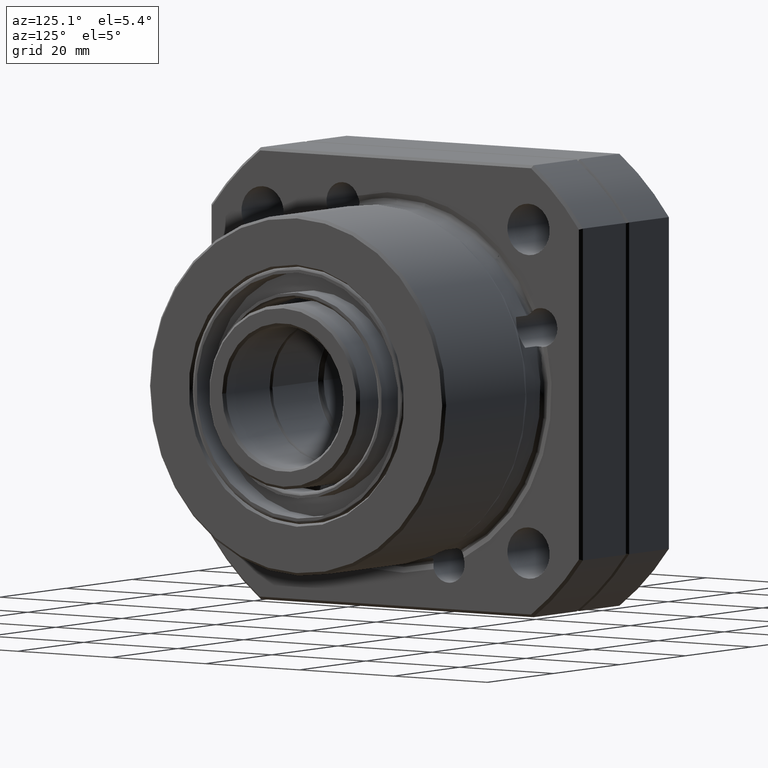
[diagram: clean part render]
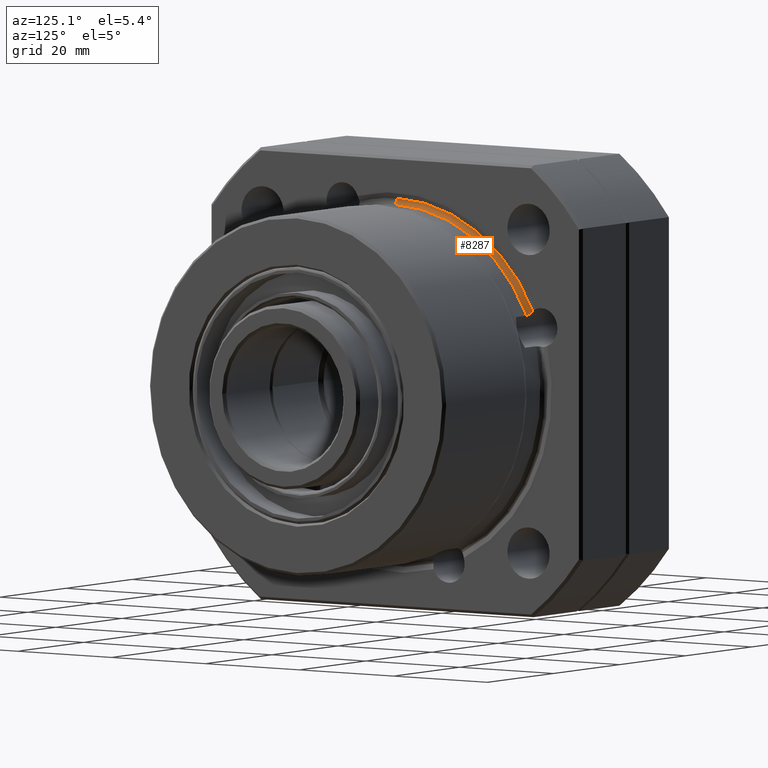
[diagram: same view with one face highlighted and labeled with its STEP entity id]
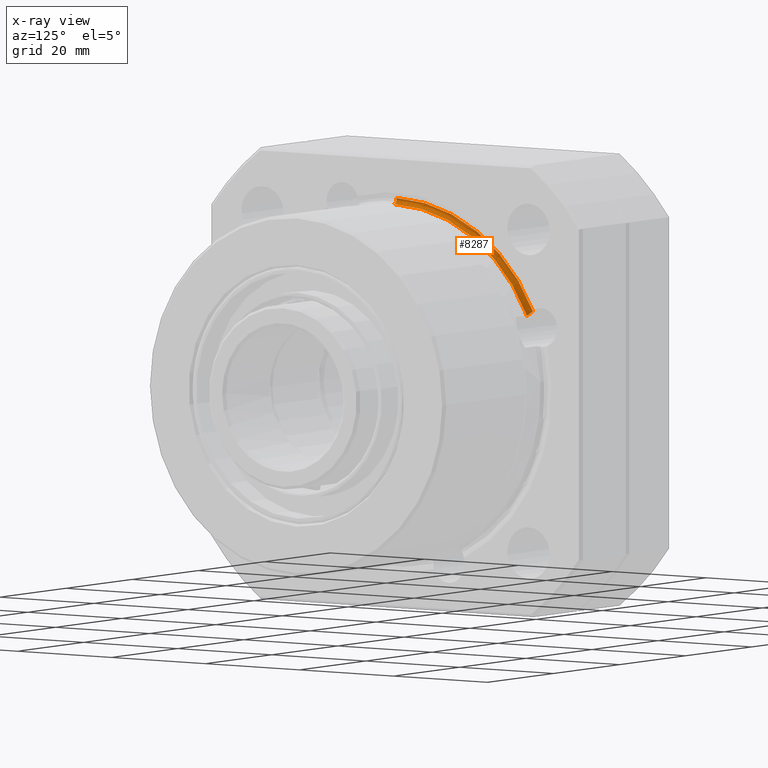
[diagram: x-ray of the same camera — body ghosted, the highlighted face saturated]
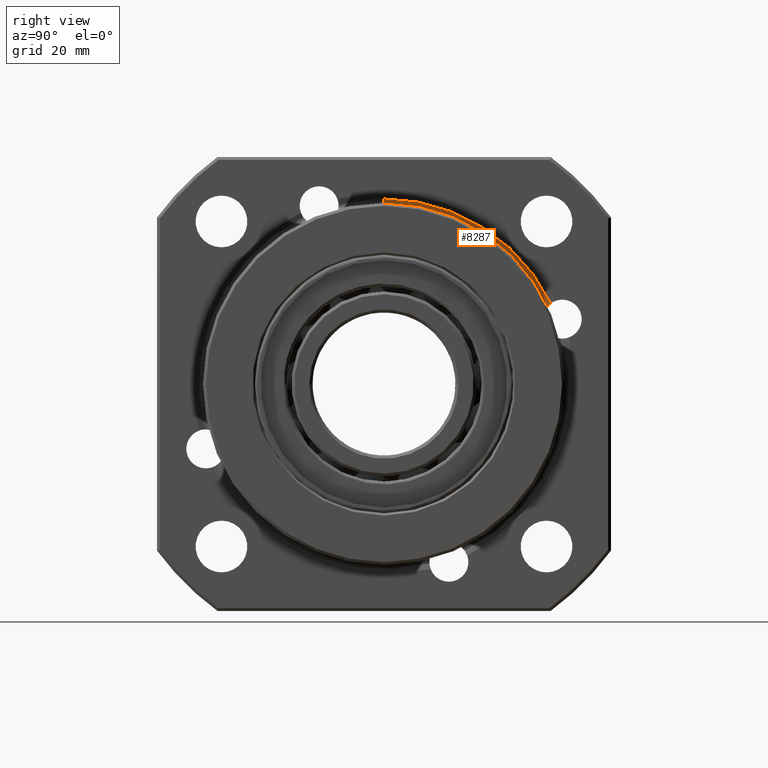
[diagram: same view with one face highlighted and labeled with its STEP entity id]
A machine part, auxiliary view. The second image highlights one B-rep face of the part: STEP entity #8287.
The next image is the same camera in x-ray: the body ghosted, the highlighted face saturated — about 0% of this face is hidden behind the body in this view.
A second angle (right view) of the same face is appended — the face is thin or edge-on in the first view.
In plain terms, the highlighted face is a freeform B-spline surface patch.
Its self-contained STEP definition (entity closure, byte-faithful):
#586 = VERTEX_POINT ( 'NONE', #2483 ) ;
#724 = CARTESIAN_POINT ( 'NONE',  ( 13.57624226026864500, 28.74636417207494800, 13.26026013525470400 ) ) ;
#725 = CIRCLE ( 'NONE', #6519, 0.8000000000000020400 ) ;
#924 = CARTESIAN_POINT ( 'NONE',  ( 14.49999999999999800, -3.081487911019577400E-030, 32.00000000000000000 ) ) ;
#1685 = CARTESIAN_POINT ( 'NONE',  ( 13.72857557779164100, 12.93587742069707900, 32.21190649074651400 ) ) ;
#1802 = AXIS2_PLACEMENT_3D ( 'NONE', #1858, #1847, #1842 ) ;
#1842 = DIRECTION ( 'NONE',  ( 0.0000000000000000000, -8.881784197001252300E-016, 1.000000000000000000 ) ) ;
#1847 = DIRECTION ( 'NONE',  ( 1.000000000000000000, -0.0000000000000000000, -0.0000000000000000000 ) ) ;
#1858 = CARTESIAN_POINT ( 'NONE',  ( 14.49999999999999800, 0.0000000000000000000, 0.0000000000000000000 ) ) ;
#1891 = DIRECTION ( 'NONE',  ( 0.0000000000000000000, 0.0000000000000000000, 1.000000000000000000 ) ) ;
#2483 = CARTESIAN_POINT ( 'NONE',  ( 14.49999999999999800, 0.0000000000000000000, 31.19999999999999900 ) ) ;
#2662 = CARTESIAN_POINT ( 'NONE',  ( 14.49999999999999800, 23.08285311349888500, 24.44607310887402800 ) ) ;
#2705 = CARTESIAN_POINT ( 'NONE',  ( 13.72857557779164100, 29.24992548720067400, 13.49254530330752600 ) ) ;
#3089 = CIRCLE ( 'NONE', #1802, 31.19999999999999900 ) ;
#3325 = CARTESIAN_POINT ( 'NONE',  ( 13.72857557779164100, 28.99737464941154400, 14.02708748137910900 ) ) ;
#3711 = CARTESIAN_POINT ( 'NONE',  ( 13.92490362806217700, -3.081487911019577700E-030, 31.19999999999999900 ) ) ;
#3729 = ORIENTED_EDGE ( 'NONE', *, *, #6599, .F. ) ;
#3756 = ORIENTED_EDGE ( 'NONE', *, *, #4771, .F. ) ;
#3768 = ORIENTED_EDGE ( 'NONE', *, *, #10486, .T. ) ;
#3785 = ORIENTED_EDGE ( 'NONE', *, *, #10081, .F. ) ;
#3834 = CARTESIAN_POINT ( 'NONE',  ( 14.02772133904862400, 28.33825553087499200, 13.39059054176156000 ) ) ;
#4277 = AXIS2_PLACEMENT_3D ( 'NONE', #10280, #4500, #11224 ) ;
#4290 = CIRCLE ( 'NONE', #4277, 32.21190649074652200 ) ;
#4500 = DIRECTION ( 'NONE',  ( -1.000000000000000000, 0.0000000000000000000, 0.0000000000000000000 ) ) ;
#4514 =( BOUNDED_SURFACE ( )  B_SPLINE_SURFACE ( 3, 3, ( 
 ( #9467, #5675, #2662, #9547 ),
 ( #3711, #10489, #4718, #11460 ),
 ( #5723, #12433, #6744, #724 ),
 ( #7705, #1685, #8665, #2705 ) ),
 .UNSPECIFIED., .F., .F., .T. ) 
 B_SPLINE_SURFACE_WITH_KNOTS ( ( 4, 4 ),
 ( 4, 4 ),
 ( 0.0000000000000000000, 1.000000000000000000 ),
 ( 0.0000000000000000000, 1.000000000000000000 ),
 .UNSPECIFIED. ) 
 GEOMETRIC_REPRESENTATION_ITEM ( )  RATIONAL_B_SPLINE_SURFACE ( (
 ( 1.000000000000000000, 0.8948527527048938400, 0.8948527527048938400, 1.000000000000000000),
 ( 0.7375106559603796800, 0.6599634406353376300, 0.6599634406353376300, 0.7375106559603796800),
 ( 0.7375106559603796800, 0.6599634406353376300, 0.6599634406353376300, 0.7375106559603796800),
 ( 1.000000000000000000, 0.8948527527048938400, 0.8948527527048938400, 1.000000000000000000) ) ) 
 REPRESENTATION_ITEM ( '' )  SURFACE ( )  );
#4718 = CARTESIAN_POINT ( 'NONE',  ( 13.92490362806217900, 23.08285311349888900, 24.44607310887403900 ) ) ;
#4771 = EDGE_CURVE ( 'NONE', #11587, #586, #3089, .T. ) ;
#4841 = CARTESIAN_POINT ( 'NONE',  ( 13.78802027655182800, 28.53257928946075200, 13.61778703031845000 ) ) ;
#5675 = CARTESIAN_POINT ( 'NONE',  ( 14.49999999999999800, 12.52950910067028900, 31.19999999999999200 ) ) ;
#5708 = FACE_OUTER_BOUND ( 'NONE', #7979, .T. ) ;
#5723 = CARTESIAN_POINT ( 'NONE',  ( 13.57624226026864500, -3.081487911019577700E-030, 31.65735225770119900 ) ) ;
#5843 = CARTESIAN_POINT ( 'NONE',  ( 13.69170442972695200, 28.79767972015898200, 13.87155378391092600 ) ) ;
#6435 = B_SPLINE_CURVE_WITH_KNOTS ( 'NONE', 3,
 ( #7790, #9576, #9667, #3834, #10602, #4841, #11588, #5843, #12564, #6847 ),
 .UNSPECIFIED., .F., .F.,
 ( 4, 2, 2, 2, 4 ),
 ( 0.0000000000000000000, 0.0003782289542567143800, 0.0007564579085134287500, 0.001134686862770143100, 0.001512915817026857500 ),
 .UNSPECIFIED. ) ;
#6519 = AXIS2_PLACEMENT_3D ( 'NONE', #924, #7897, #1891 ) ;
#6599 = EDGE_CURVE ( 'NONE', #586, #8657, #725, .T. ) ;
#6744 = CARTESIAN_POINT ( 'NONE',  ( 13.57624226026864500, 23.42121833739772900, 24.80442140144685900 ) ) ;
#6847 = CARTESIAN_POINT ( 'NONE',  ( 13.72857557779164100, 28.99737464941154400, 14.02708748137910900 ) ) ;
#7705 = CARTESIAN_POINT ( 'NONE',  ( 13.72857557779164100, -3.081487911019577400E-030, 32.21190649074652200 ) ) ;
#7790 = CARTESIAN_POINT ( 'NONE',  ( 14.49999999999999800, 28.24166685691946600, 13.26077875325490600 ) ) ;
#7897 = DIRECTION ( 'NONE',  ( 0.0000000000000000000, 1.000000000000000000, 0.0000000000000000000 ) ) ;
#7979 = EDGE_LOOP ( 'NONE', ( #3729, #3756, #3768, #3785 ) ) ;
#8287 = ADVANCED_FACE ( 'NONE', ( #5708 ), #4514, .F. ) ;
#8570 = VERTEX_POINT ( 'NONE', #3325 ) ;
#8657 = VERTEX_POINT ( 'NONE', #10269 ) ;
#8665 = CARTESIAN_POINT ( 'NONE',  ( 13.72857557779164100, 23.83149698819433500, 25.23893016182703500 ) ) ;
#9427 = CARTESIAN_POINT ( 'NONE',  ( 14.49999999999999800, 28.24166685691946600, 13.26077875325490600 ) ) ;
#9467 = CARTESIAN_POINT ( 'NONE',  ( 14.49999999999999800, -3.081487911019577400E-030, 31.19999999999999900 ) ) ;
#9547 = CARTESIAN_POINT ( 'NONE',  ( 14.49999999999999800, 28.33106682036414300, 13.06868978972498000 ) ) ;
#9576 = CARTESIAN_POINT ( 'NONE',  ( 14.37194401738861600, 28.24166685691946200, 13.26077875325490600 ) ) ;
#9667 = CARTESIAN_POINT ( 'NONE',  ( 14.24686506660252600, 28.26227365336060900, 13.29034735523467800 ) ) ;
#10081 = EDGE_CURVE ( 'NONE', #8657, #8570, #4290, .T. ) ;
#10269 = CARTESIAN_POINT ( 'NONE',  ( 13.72857557779164100, -3.081487911019577400E-030, 32.21190649074652200 ) ) ;
#10280 = CARTESIAN_POINT ( 'NONE',  ( 13.72857557779164100, 0.0000000000000000000, 0.0000000000000000000 ) ) ;
#10486 = EDGE_CURVE ( 'NONE', #11587, #8570, #6435, .T. ) ;
#10489 = CARTESIAN_POINT ( 'NONE',  ( 13.92490362806217900, 12.52950910067028500, 31.19999999999999900 ) ) ;
#10602 = CARTESIAN_POINT ( 'NONE',  ( 13.93343745375154300, 28.39340451997422900, 13.46042014336024700 ) ) ;
#11224 = DIRECTION ( 'NONE',  ( 0.0000000000000000000, 0.0000000000000000000, 1.000000000000000000 ) ) ;
#11460 = CARTESIAN_POINT ( 'NONE',  ( 13.92490362806217700, 28.33106682036414300, 13.06868978972498000 ) ) ;
#11587 = VERTEX_POINT ( 'NONE', #9427 ) ;
#11588 = CARTESIAN_POINT ( 'NONE',  ( 13.73828274284814600, 28.61525396591988000, 13.70353382767368800 ) ) ;
#12433 = CARTESIAN_POINT ( 'NONE',  ( 13.57624226026864500, 12.71317574410231700, 31.65735225770120200 ) ) ;
#12564 = CARTESIAN_POINT ( 'NONE',  ( 13.69522045176314200, 28.89784490473115100, 13.95399591065583400 ) ) ;